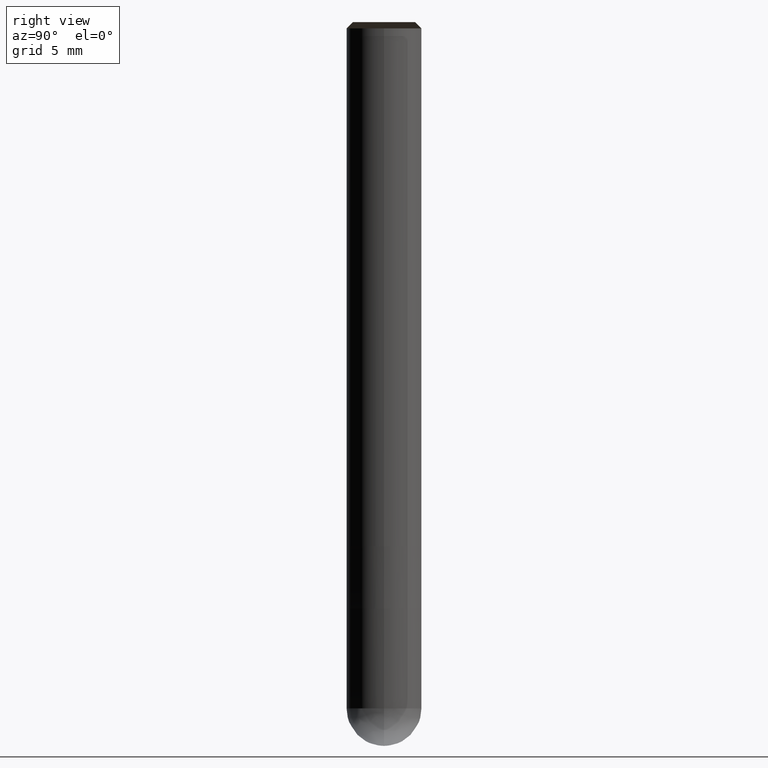
[diagram: clean part render]
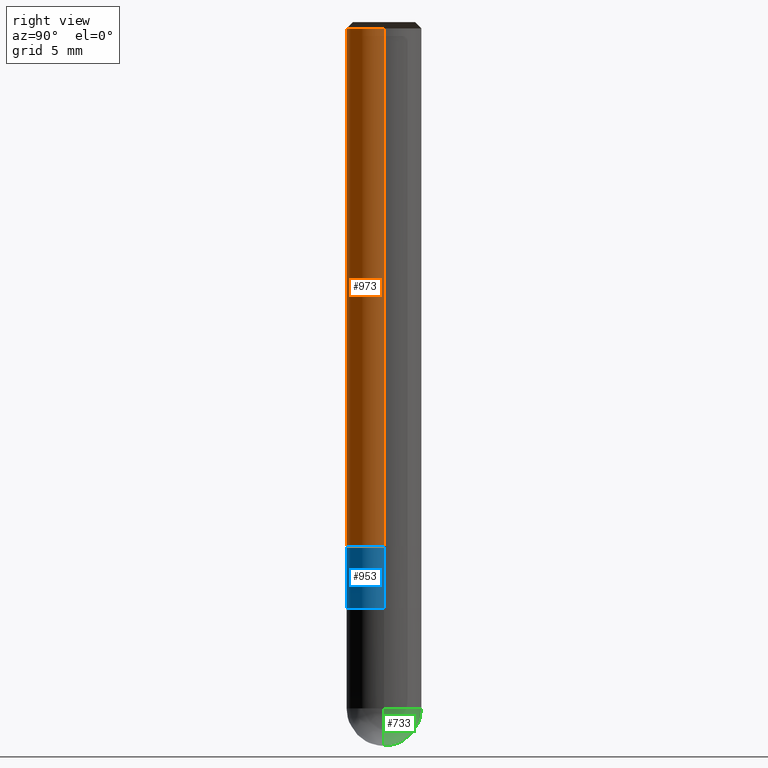
[diagram: same view with three faces highlighted in distinct colors, each labeled with its STEP entity id]
A machine part, right view with three faces highlighted in distinct colors.
Their STEP definitions:

[orange] entity #973 — the highlighted face is a freeform B-spline surface patch.
#686=CARTESIAN_POINT('',(3.0,0.0,0.0));
#690=CARTESIAN_POINT('',(-3.0,0.0,0.0));
#691=CARTESIAN_POINT('',(3.0,0.0,41.5));
#695=CARTESIAN_POINT('',(-3.0,0.0,41.5));
#702=CARTESIAN_POINT('',(-3.0,-3.0,0.0));
#703=CARTESIAN_POINT('',(0.0,-3.0,0.0));
#704=CARTESIAN_POINT('',(3.0,-3.0,0.0));
#705=CARTESIAN_POINT('',(-3.0,-3.0,41.5));
#706=CARTESIAN_POINT('',(0.0,-3.0,41.5));
#707=CARTESIAN_POINT('',(3.0,-3.0,41.5));
#954=(
BOUNDED_SURFACE()
B_SPLINE_SURFACE(1,2,(
(#690,#702,#703,#704,#686),
(#695,#705,#706,#707,#691)
), .UNSPECIFIED.,.F.,.F.,.F.)
B_SPLINE_SURFACE_WITH_KNOTS((2,2),(3,2,3),(
0.0,1.0),(
0.0,0.5,1.0), .UNSPECIFIED.)
GEOMETRIC_REPRESENTATION_ITEM()
RATIONAL_B_SPLINE_SURFACE(((1.0,0.707106781187,1.0,0.707106781187,1.0),
(1.0,0.707106781187,1.0,0.707106781187,1.0)
))
REPRESENTATION_ITEM('')
SURFACE()
);
#955=(
BOUNDED_CURVE()
B_SPLINE_CURVE(2,(#686,#704,#703,#702,#690),.UNSPECIFIED.,.F.,.F.)
B_SPLINE_CURVE_WITH_KNOTS((3,2,3),
(0.0,0.5,1.0),.UNSPECIFIED.)
CURVE()
GEOMETRIC_REPRESENTATION_ITEM()
RATIONAL_B_SPLINE_CURVE((1.0,0.707106781187,1.0,0.707106781187,1.0))
REPRESENTATION_ITEM('')
);
#956=(
BOUNDED_CURVE()
B_SPLINE_CURVE(1,(#690,#695),.UNSPECIFIED.,.F.,.F.)
B_SPLINE_CURVE_WITH_KNOTS((2,2),
(0.0,1.0),.UNSPECIFIED.)
CURVE()
GEOMETRIC_REPRESENTATION_ITEM()
RATIONAL_B_SPLINE_CURVE((1.0,1.0))
REPRESENTATION_ITEM('')
);
#957=(
BOUNDED_CURVE()
B_SPLINE_CURVE(2,(#695,#705,#706,#707,#691),.UNSPECIFIED.,.F.,.F.)
B_SPLINE_CURVE_WITH_KNOTS((3,2,3),
(0.0,0.5,1.0),.UNSPECIFIED.)
CURVE()
GEOMETRIC_REPRESENTATION_ITEM()
RATIONAL_B_SPLINE_CURVE((1.0,0.707106781187,1.0,0.707106781187,1.0))
REPRESENTATION_ITEM('')
);
#958=(
BOUNDED_CURVE()
B_SPLINE_CURVE(1,(#691,#686),.UNSPECIFIED.,.F.,.F.)
B_SPLINE_CURVE_WITH_KNOTS((2,2),
(0.0,1.0),.UNSPECIFIED.)
CURVE()
GEOMETRIC_REPRESENTATION_ITEM()
RATIONAL_B_SPLINE_CURVE((1.0,1.0))
REPRESENTATION_ITEM('')
);
#959=VERTEX_POINT('',#686);
#960=VERTEX_POINT('',#690);
#961=VERTEX_POINT('',#691);
#962=VERTEX_POINT('',#695);
#963=EDGE_CURVE('',#959,#960,#955,.T.);
#964=EDGE_CURVE('',#960,#962,#956,.T.);
#965=EDGE_CURVE('',#962,#961,#957,.T.);
#966=EDGE_CURVE('',#961,#959,#958,.T.);
#967=ORIENTED_EDGE('',*,*,#963,.T.);
#968=ORIENTED_EDGE('',*,*,#964,.T.);
#969=ORIENTED_EDGE('',*,*,#965,.T.);
#970=ORIENTED_EDGE('',*,*,#966,.T.);
#971=EDGE_LOOP('',(#967,#968,#969,#970));
#972=FACE_OUTER_BOUND('',#971,.T.);
#973=ADVANCED_FACE('',(#972),#954,.T.);

[blue] entity #953 — the highlighted face is a freeform B-spline surface patch.
#671=CARTESIAN_POINT('',(3.0,0.0,-5.0));
#675=CARTESIAN_POINT('',(-3.0,0.0,-5.0));
#683=CARTESIAN_POINT('',(-3.0,-3.0,-5.0));
#684=CARTESIAN_POINT('',(0.0,-3.0,-5.0));
#685=CARTESIAN_POINT('',(3.0,-3.0,-5.0));
#686=CARTESIAN_POINT('',(3.0,0.0,0.0));
#690=CARTESIAN_POINT('',(-3.0,0.0,0.0));
#702=CARTESIAN_POINT('',(-3.0,-3.0,0.0));
#703=CARTESIAN_POINT('',(0.0,-3.0,0.0));
#704=CARTESIAN_POINT('',(3.0,-3.0,0.0));
#934=(
BOUNDED_SURFACE()
B_SPLINE_SURFACE(1,2,(
(#675,#683,#684,#685,#671),
(#690,#702,#703,#704,#686)
), .UNSPECIFIED.,.F.,.F.,.F.)
B_SPLINE_SURFACE_WITH_KNOTS((2,2),(3,2,3),(
0.0,1.0),(
0.0,0.5,1.0), .UNSPECIFIED.)
GEOMETRIC_REPRESENTATION_ITEM()
RATIONAL_B_SPLINE_SURFACE(((1.0,0.707106781187,1.0,0.707106781187,1.0),
(1.0,0.707106781187,1.0,0.707106781187,1.0)
))
REPRESENTATION_ITEM('')
SURFACE()
);
#935=(
BOUNDED_CURVE()
B_SPLINE_CURVE(2,(#671,#685,#684,#683,#675),.UNSPECIFIED.,.F.,.F.)
B_SPLINE_CURVE_WITH_KNOTS((3,2,3),
(0.0,0.5,1.0),.UNSPECIFIED.)
CURVE()
GEOMETRIC_REPRESENTATION_ITEM()
RATIONAL_B_SPLINE_CURVE((1.0,0.707106781187,1.0,0.707106781187,1.0))
REPRESENTATION_ITEM('')
);
#936=(
BOUNDED_CURVE()
B_SPLINE_CURVE(1,(#675,#690),.UNSPECIFIED.,.F.,.F.)
B_SPLINE_CURVE_WITH_KNOTS((2,2),
(0.0,1.0),.UNSPECIFIED.)
CURVE()
GEOMETRIC_REPRESENTATION_ITEM()
RATIONAL_B_SPLINE_CURVE((1.0,1.0))
REPRESENTATION_ITEM('')
);
#937=(
BOUNDED_CURVE()
B_SPLINE_CURVE(2,(#690,#702,#703,#704,#686),.UNSPECIFIED.,.F.,.F.)
B_SPLINE_CURVE_WITH_KNOTS((3,2,3),
(0.0,0.5,1.0),.UNSPECIFIED.)
CURVE()
GEOMETRIC_REPRESENTATION_ITEM()
RATIONAL_B_SPLINE_CURVE((1.0,0.707106781187,1.0,0.707106781187,1.0))
REPRESENTATION_ITEM('')
);
#938=(
BOUNDED_CURVE()
B_SPLINE_CURVE(1,(#686,#671),.UNSPECIFIED.,.F.,.F.)
B_SPLINE_CURVE_WITH_KNOTS((2,2),
(0.0,1.0),.UNSPECIFIED.)
CURVE()
GEOMETRIC_REPRESENTATION_ITEM()
RATIONAL_B_SPLINE_CURVE((1.0,1.0))
REPRESENTATION_ITEM('')
);
#939=VERTEX_POINT('',#671);
#940=VERTEX_POINT('',#675);
#941=VERTEX_POINT('',#686);
#942=VERTEX_POINT('',#690);
#943=EDGE_CURVE('',#939,#940,#935,.T.);
#944=EDGE_CURVE('',#940,#942,#936,.T.);
#945=EDGE_CURVE('',#942,#941,#937,.T.);
#946=EDGE_CURVE('',#941,#939,#938,.T.);
#947=ORIENTED_EDGE('',*,*,#943,.T.);
#948=ORIENTED_EDGE('',*,*,#944,.T.);
#949=ORIENTED_EDGE('',*,*,#945,.T.);
#950=ORIENTED_EDGE('',*,*,#946,.T.);
#951=EDGE_LOOP('',(#947,#948,#949,#950));
#952=FACE_OUTER_BOUND('',#951,.T.);
#953=ADVANCED_FACE('',(#952),#934,.T.);

[green] entity #733 — the highlighted face is a freeform B-spline surface patch.
#660=CARTESIAN_POINT('',(0.0,0.0,-16.0));
#661=CARTESIAN_POINT('',(3.0,0.0,-16.0));
#662=CARTESIAN_POINT('',(3.0,3.0,-16.0));
#663=CARTESIAN_POINT('',(0.0,3.0,-16.0));
#664=CARTESIAN_POINT('',(-3.0,3.0,-16.0));
#665=CARTESIAN_POINT('',(-3.0,0.0,-16.0));
#666=CARTESIAN_POINT('',(3.0,0.0,-13.0));
#667=CARTESIAN_POINT('',(3.0,3.0,-13.0));
#668=CARTESIAN_POINT('',(0.0,3.0,-13.0));
#669=CARTESIAN_POINT('',(-3.0,3.0,-13.0));
#670=CARTESIAN_POINT('',(-3.0,0.0,-13.0));
#718=(
BOUNDED_SURFACE()
B_SPLINE_SURFACE(2,2,(
(#660,#660,#660,#660,#660),
(#661,#662,#663,#664,#665),
(#666,#667,#668,#669,#670)
), .UNSPECIFIED.,.F.,.F.,.F.)
B_SPLINE_SURFACE_WITH_KNOTS((3,3),(3,2,3),(
0.0,1.0),(
0.0,0.5,1.0), .UNSPECIFIED.)
GEOMETRIC_REPRESENTATION_ITEM()
RATIONAL_B_SPLINE_SURFACE(((1.0,0.707106781187,1.0,0.707106781187,1.0),
(0.707106781187,0.5,0.707106781187,0.5,0.707106781187),
(1.0,0.707106781187,1.0,0.707106781187,1.0)
))
REPRESENTATION_ITEM('')
SURFACE()
);
#719=(
BOUNDED_CURVE()
B_SPLINE_CURVE(2,(#670,#665,#660),.UNSPECIFIED.,.F.,.F.)
B_SPLINE_CURVE_WITH_KNOTS((3,3),
(0.0,1.0),.UNSPECIFIED.)
CURVE()
GEOMETRIC_REPRESENTATION_ITEM()
RATIONAL_B_SPLINE_CURVE((1.0,0.707106781187,1.0))
REPRESENTATION_ITEM('')
);
#720=(
BOUNDED_CURVE()
B_SPLINE_CURVE(2,(#660,#661,#666),.UNSPECIFIED.,.F.,.F.)
B_SPLINE_CURVE_WITH_KNOTS((3,3),
(0.0,1.0),.UNSPECIFIED.)
CURVE()
GEOMETRIC_REPRESENTATION_ITEM()
RATIONAL_B_SPLINE_CURVE((1.0,0.707106781187,1.0))
REPRESENTATION_ITEM('')
);
#721=(
BOUNDED_CURVE()
B_SPLINE_CURVE(2,(#666,#667,#668,#669,#670),.UNSPECIFIED.,.F.,.F.)
B_SPLINE_CURVE_WITH_KNOTS((3,2,3),
(0.0,0.5,1.0),.UNSPECIFIED.)
CURVE()
GEOMETRIC_REPRESENTATION_ITEM()
RATIONAL_B_SPLINE_CURVE((1.0,0.707106781187,1.0,0.707106781187,1.0))
REPRESENTATION_ITEM('')
);
#722=VERTEX_POINT('',#660);
#723=VERTEX_POINT('',#666);
#724=VERTEX_POINT('',#670);
#725=EDGE_CURVE('',#724,#722,#719,.T.);
#726=EDGE_CURVE('',#722,#723,#720,.T.);
#727=EDGE_CURVE('',#723,#724,#721,.T.);
#728=ORIENTED_EDGE('',*,*,#725,.T.);
#729=ORIENTED_EDGE('',*,*,#726,.T.);
#730=ORIENTED_EDGE('',*,*,#727,.T.);
#731=EDGE_LOOP('',(#728,#729,#730));
#732=FACE_OUTER_BOUND('',#731,.T.);
#733=ADVANCED_FACE('',(#732),#718,.T.);